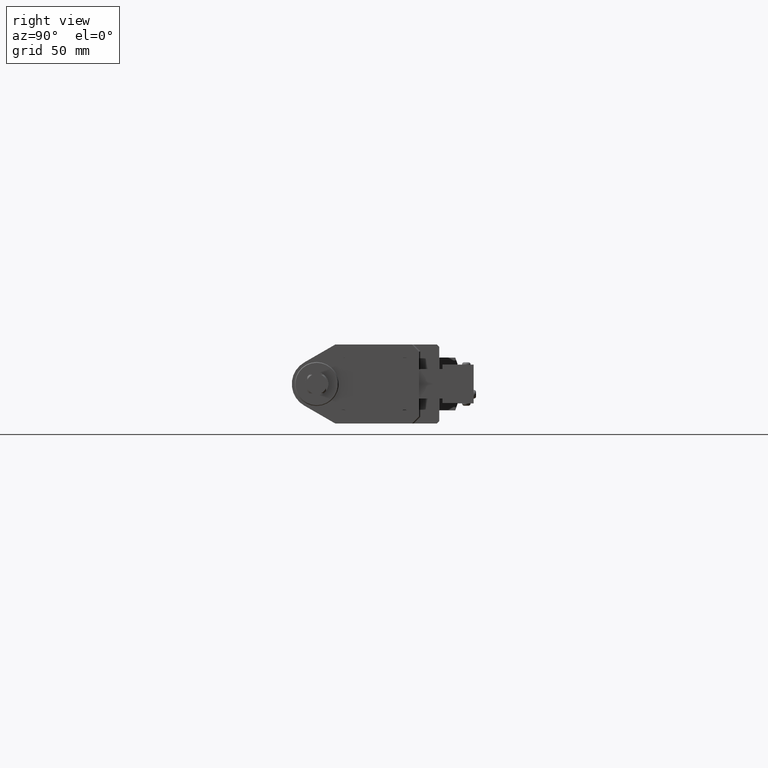
[diagram: clean part render]
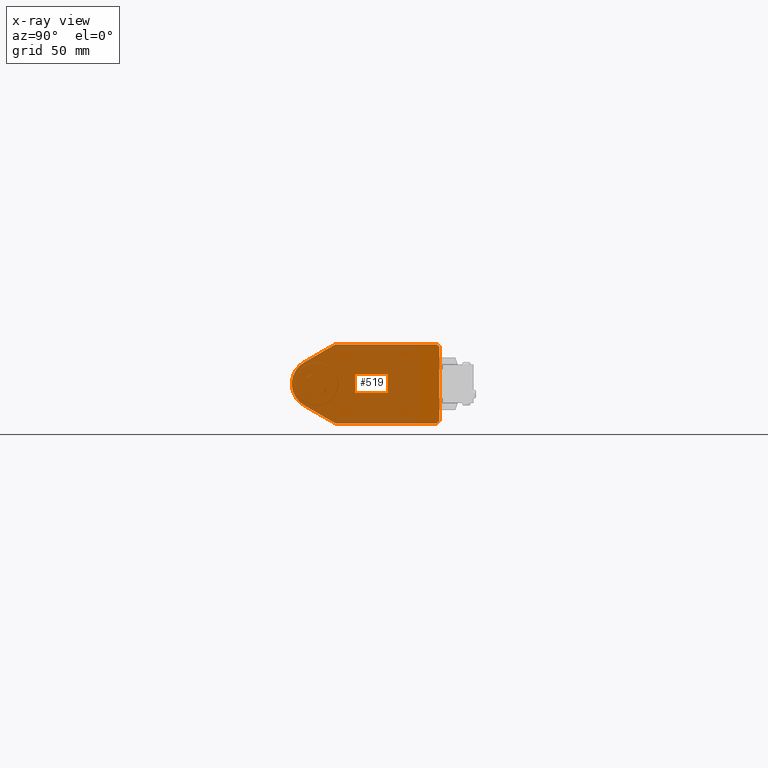
[diagram: x-ray — body ghosted, one internal face saturated and labeled with its STEP entity id]
A machine part, right view, then the same camera in x-ray: the body is ghosted and one INTERNAL B-rep face — a face not visible from any outside direction — is saturated and labeled: STEP entity #519.
In plain terms, the highlighted planar face has unit normal (-1, 0, 0).
Its self-contained STEP definition (entity closure, byte-faithful):
#396 = ORIENTED_EDGE ( 'NONE', *, *, #4735, .T. ) ;
#417 = DIRECTION ( 'NONE',  ( -0.0000000000000000000, -0.7071067811865461300, -0.7071067811865489100 ) ) ;
#519 = ADVANCED_FACE ( 'NONE', ( #4967 ), #2228, .T. ) ;
#646 = EDGE_CURVE ( 'NONE', #10234, #5891, #1915, .T. ) ;
#1169 = VECTOR ( 'NONE', #3532, 1000.000000000000100 ) ;
#1530 = CIRCLE ( 'NONE', #5960, 16.99999999999997900 ) ;
#1631 = LINE ( 'NONE', #7207, #3609 ) ;
#1656 = VECTOR ( 'NONE', #4988, 1000.000000000000000 ) ;
#1831 = CARTESIAN_POINT ( 'NONE',  ( -67.00000000000000000, 82.00000000000000000, 27.00000000000000000 ) ) ;
#1915 = LINE ( 'NONE', #7524, #1656 ) ;
#2131 = CARTESIAN_POINT ( 'NONE',  ( -67.00000000000000000, -8.500000000000010700, 14.72243186433542700 ) ) ;
#2228 = PLANE ( 'NONE',  #10356 ) ;
#2313 = ORIENTED_EDGE ( 'NONE', *, *, #8522, .T. ) ;
#2767 = EDGE_CURVE ( 'NONE', #10382, #5124, #1530, .T. ) ;
#2878 = ORIENTED_EDGE ( 'NONE', *, *, #6333, .T. ) ;
#2879 = ORIENTED_EDGE ( 'NONE', *, *, #4269, .T. ) ;
#3065 = CARTESIAN_POINT ( 'NONE',  ( -67.00000000000000000, 0.0000000000000000000, 0.0000000000000000000 ) ) ;
#3463 = VECTOR ( 'NONE', #7601, 1000.000000000000000 ) ;
#3532 = DIRECTION ( 'NONE',  ( 0.0000000000000000000, -0.8660254037844373800, 0.5000000000000021100 ) ) ;
#3544 = LINE ( 'NONE', #4933, #10069 ) ;
#3563 = DIRECTION ( 'NONE',  ( 0.0000000000000000000, 0.7071067811865461300, -0.7071067811865489100 ) ) ;
#3609 = VECTOR ( 'NONE', #417, 1000.000000000000100 ) ;
#3980 = EDGE_LOOP ( 'NONE', ( #7580, #396, #2878, #2313, #5907, #2879, #6325, #4062 ) ) ;
#3998 = DIRECTION ( 'NONE',  ( 0.0000000000000000000, 1.000000000000000000, 0.0000000000000000000 ) ) ;
#4062 = ORIENTED_EDGE ( 'NONE', *, *, #4509, .T. ) ;
#4085 = LINE ( 'NONE', #9951, #8604 ) ;
#4217 = LINE ( 'NONE', #8653, #10703 ) ;
#4269 = EDGE_CURVE ( 'NONE', #5891, #10382, #10209, .T. ) ;
#4395 = CARTESIAN_POINT ( 'NONE',  ( -67.00000000000000000, 12.76537180435958000, -26.99999999999999600 ) ) ;
#4415 = CARTESIAN_POINT ( 'NONE',  ( -67.00000000000000000, 12.76537180435958000, -26.99999999999999600 ) ) ;
#4441 = EDGE_CURVE ( 'NONE', #4859, #4727, #4085, .T. ) ;
#4502 = CARTESIAN_POINT ( 'NONE',  ( -67.00000000000000000, 83.70000000000000300, -25.30000000000000100 ) ) ;
#4509 = EDGE_CURVE ( 'NONE', #5124, #4859, #3544, .T. ) ;
#4727 = VERTEX_POINT ( 'NONE', #1831 ) ;
#4735 = EDGE_CURVE ( 'NONE', #4727, #8432, #4217, .T. ) ;
#4807 = CARTESIAN_POINT ( 'NONE',  ( -67.00000000000000000, 83.70000000000000300, 25.30000000000000100 ) ) ;
#4859 = VERTEX_POINT ( 'NONE', #7961 ) ;
#4894 = DIRECTION ( 'NONE',  ( -1.000000000000000000, 0.0000000000000000000, 0.0000000000000000000 ) ) ;
#4933 = CARTESIAN_POINT ( 'NONE',  ( -67.00000000000000000, -8.500000000000000000, 14.72243186433542800 ) ) ;
#4967 = FACE_OUTER_BOUND ( 'NONE', #3980, .T. ) ;
#4988 = DIRECTION ( 'NONE',  ( 0.0000000000000000000, -1.000000000000000000, 5.011144050849511900E-017 ) ) ;
#5034 = CARTESIAN_POINT ( 'NONE',  ( -67.00000000000000000, 83.70000000000000300, -25.30000000000000100 ) ) ;
#5124 = VERTEX_POINT ( 'NONE', #2131 ) ;
#5891 = VERTEX_POINT ( 'NONE', #4415 ) ;
#5907 = ORIENTED_EDGE ( 'NONE', *, *, #646, .T. ) ;
#5960 = AXIS2_PLACEMENT_3D ( 'NONE', #9992, #4894, #10838 ) ;
#5999 = LINE ( 'NONE', #5034, #3463 ) ;
#6325 = ORIENTED_EDGE ( 'NONE', *, *, #2767, .T. ) ;
#6333 = EDGE_CURVE ( 'NONE', #8432, #8229, #5999, .T. ) ;
#7187 = CARTESIAN_POINT ( 'NONE',  ( -67.00000000000000000, 82.00000000000000000, -27.00000000000000000 ) ) ;
#7207 = CARTESIAN_POINT ( 'NONE',  ( -67.00000000000000000, 82.00000000000000000, -27.00000000000000000 ) ) ;
#7329 = DIRECTION ( 'NONE',  ( -1.000000000000000000, 0.0000000000000000000, 0.0000000000000000000 ) ) ;
#7524 = CARTESIAN_POINT ( 'NONE',  ( -67.00000000000000000, 82.00000000000000000, -27.00000000000000000 ) ) ;
#7580 = ORIENTED_EDGE ( 'NONE', *, *, #4441, .T. ) ;
#7601 = DIRECTION ( 'NONE',  ( -0.0000000000000000000, -0.0000000000000000000, -1.000000000000000000 ) ) ;
#7961 = CARTESIAN_POINT ( 'NONE',  ( -67.00000000000000000, 12.76537180435968800, 27.00000000000000000 ) ) ;
#8229 = VERTEX_POINT ( 'NONE', #4502 ) ;
#8432 = VERTEX_POINT ( 'NONE', #4807 ) ;
#8522 = EDGE_CURVE ( 'NONE', #8229, #10234, #1631, .T. ) ;
#8604 = VECTOR ( 'NONE', #3998, 1000.000000000000000 ) ;
#8653 = CARTESIAN_POINT ( 'NONE',  ( -67.00000000000000000, 82.00000000000000000, 27.00000000000000000 ) ) ;
#9068 = CARTESIAN_POINT ( 'NONE',  ( -67.00000000000000000, -8.500000000000016000, -14.72243186433543400 ) ) ;
#9884 = DIRECTION ( 'NONE',  ( 0.0000000000000000000, 0.0000000000000000000, 1.000000000000000000 ) ) ;
#9951 = CARTESIAN_POINT ( 'NONE',  ( -67.00000000000000000, 12.76537180435968800, 27.00000000000000000 ) ) ;
#9992 = CARTESIAN_POINT ( 'NONE',  ( -67.00000000000000000, 0.0000000000000000000, 0.0000000000000000000 ) ) ;
#10031 = DIRECTION ( 'NONE',  ( 0.0000000000000000000, 0.8660254037844381500, 0.5000000000000008900 ) ) ;
#10069 = VECTOR ( 'NONE', #10031, 1000.000000000000000 ) ;
#10209 = LINE ( 'NONE', #4395, #1169 ) ;
#10234 = VERTEX_POINT ( 'NONE', #7187 ) ;
#10356 = AXIS2_PLACEMENT_3D ( 'NONE', #3065, #7329, #9884 ) ;
#10382 = VERTEX_POINT ( 'NONE', #9068 ) ;
#10703 = VECTOR ( 'NONE', #3563, 1000.000000000000100 ) ;
#10838 = DIRECTION ( 'NONE',  ( 0.0000000000000000000, 0.0000000000000000000, 1.000000000000000000 ) ) ;